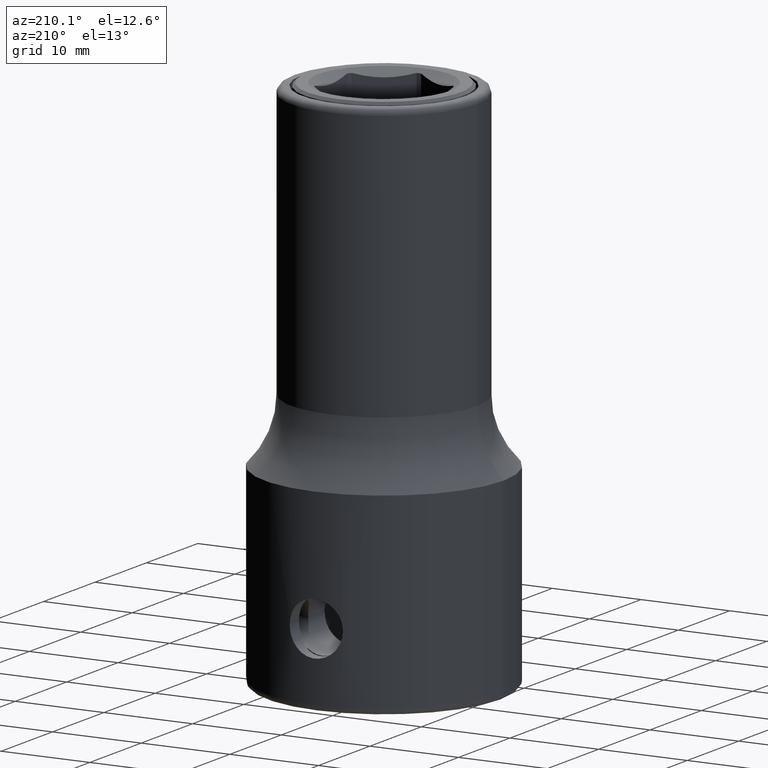
[diagram: clean part render]
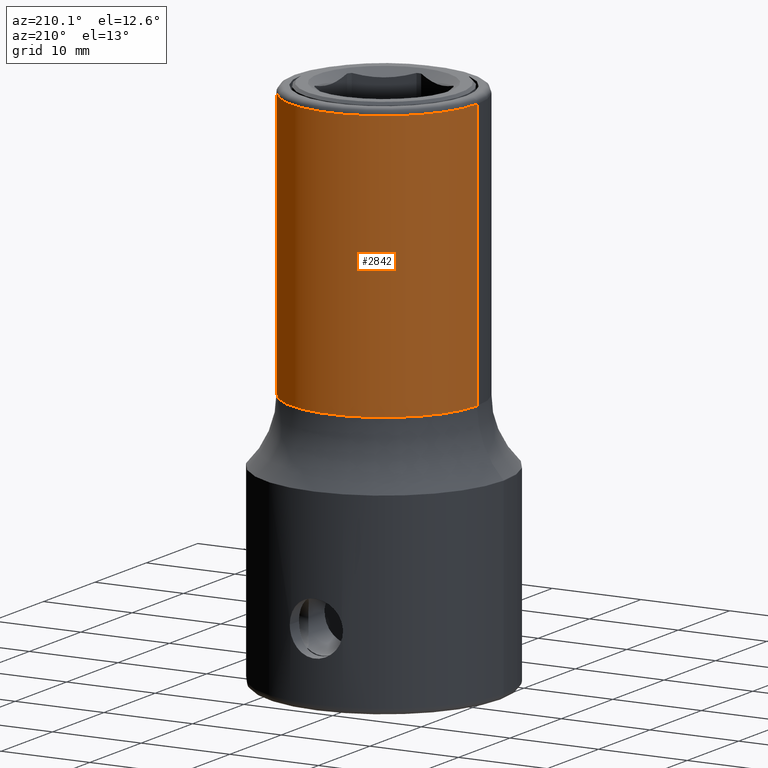
[diagram: same view with one face highlighted and labeled with its STEP entity id]
A machine part, auxiliary view. The second image highlights one B-rep face of the part: STEP entity #2842.
In plain terms, the highlighted cylindrical surface (partial cylindrical patch) has radius 10.5 mm, axis along (0, 0, 1).
Its self-contained STEP definition (entity closure, byte-faithful):
#2404=CARTESIAN_POINT('',(0.E0,0.E0,5.9E1));
#2405=DIRECTION('',(0.E0,0.E0,1.E0));
#2406=DIRECTION('',(-1.E0,0.E0,0.E0));
#2407=AXIS2_PLACEMENT_3D('',#2404,#2405,#2406);
#2412=CARTESIAN_POINT('',(0.E0,0.E0,2.884142856743E1));
#2413=DIRECTION('',(0.E0,0.E0,1.E0));
#2414=DIRECTION('',(-1.E0,0.E0,0.E0));
#2415=AXIS2_PLACEMENT_3D('',#2412,#2413,#2414);
#2420=DIRECTION('',(-3.884986893862E-11,-1.925263628372E-14,1.E0));
#2421=VECTOR('',#2420,3.015857148476E1);
#2422=CARTESIAN_POINT('',(-1.049999999883E1,0.E0,2.884142851524E1));
#2423=LINE('',#2422,#2421);
#2537=DIRECTION('',(3.884986893862E-11,1.928948775024E-14,1.E0));
#2538=VECTOR('',#2537,3.015857148476E1);
#2539=CARTESIAN_POINT('',(1.049999999883E1,0.E0,2.884142851524E1));
#2540=LINE('',#2539,#2538);
#2548=CARTESIAN_POINT('',(-1.05E1,0.E0,2.884142856743E1));
#2549=CARTESIAN_POINT('',(1.05E1,0.E0,2.884142856743E1));
#2550=VERTEX_POINT('',#2548);
#2551=VERTEX_POINT('',#2549);
#2572=CARTESIAN_POINT('',(1.05E1,0.E0,5.9E1));
#2573=CARTESIAN_POINT('',(-1.05E1,0.E0,5.9E1));
#2574=VERTEX_POINT('',#2572);
#2575=VERTEX_POINT('',#2573);
#2828=CARTESIAN_POINT('',(0.E0,0.E0,2.17E1));
#2829=DIRECTION('',(0.E0,0.E0,1.E0));
#2830=DIRECTION('',(1.E0,0.E0,0.E0));
#2831=AXIS2_PLACEMENT_3D('',#2828,#2829,#2830);
#2832=CYLINDRICAL_SURFACE('',#2831,1.05E1);
#2834=ORIENTED_EDGE('',*,*,#2833,.T.);
#2836=ORIENTED_EDGE('',*,*,#2835,.F.);
#2837=ORIENTED_EDGE('',*,*,#2822,.F.);
#2839=ORIENTED_EDGE('',*,*,#2838,.T.);
#2840=EDGE_LOOP('',(#2834,#2836,#2837,#2839));
#2841=FACE_OUTER_BOUND('',#2840,.F.);
#2842=ADVANCED_FACE('',(#2841),#2832,.T.);
#2408=CIRCLE('',#2407,1.05E1);
#2416=CIRCLE('',#2415,1.05E1);
#2822=EDGE_CURVE('',#2550,#2551,#2416,.T.);
#2833=EDGE_CURVE('',#2575,#2574,#2408,.T.);
#2835=EDGE_CURVE('',#2551,#2574,#2540,.T.);
#2838=EDGE_CURVE('',#2550,#2575,#2423,.T.);